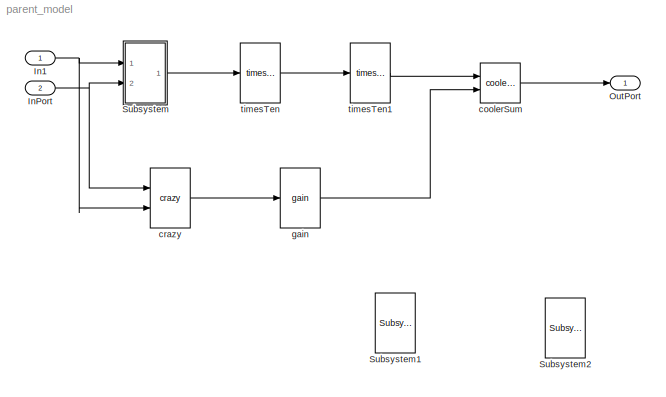
MODEL parent_model
KIND model
BLOCK [Inport] In1
  IconDisplay = Port number
  SID = 2
BLOCK [Inport] InPort
  CopyFcn = if exist('tl_reset_reviewflag') == 2, tl_reset_reviewflag(gcbh); end
  DeleteFcn = if exist('delete_tlblock','file')==2,delete_tlblock(gcbh);end
  IconDisplay = Port number
  NameChangeFcn = if exist('rename_tlblock','file')==2,rename_tlblock(gcbh);end
  OpenFcn = if exist('tl_open_blockdlg','file')==2,tl_open_blockdlg(gcbh);else,open_system(gcbh,'parameter');end
  Port = 2
  SID = 26
BLOCK [Outport] OutPort
  CopyFcn = if exist('tl_reset_reviewflag') == 2, tl_reset_reviewflag(gcbh); end
  DeleteFcn = if exist('delete_tlblock','file')==2,delete_tlblock(gcbh);end
  IconDisplay = Port number
  NameChangeFcn = if exist('rename_tlblock','file')==2,rename_tlblock(gcbh);end
  OpenFcn = if exist('tl_open_blockdlg','file')==2,tl_open_blockdlg(gcbh);else,open_system(gcbh,'parameter');end
  SID = 28
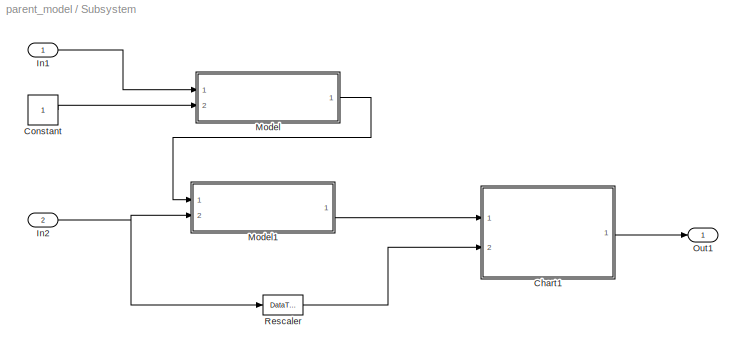
BLOCK [SubSystem] Subsystem
  Ports = [2, 1]
  RequestExecContextInheritance = off
  SID = 9
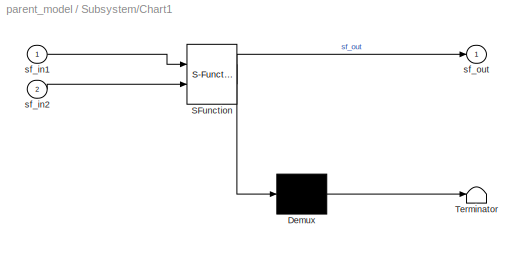
BLOCK [SubSystem] Subsystem/Chart1
  ErrorFcn = Stateflow.Translate.translate
  PermitHierarchicalResolution = ExplicitOnly
  Ports = [2, 1]
  RequestExecContextInheritance = off
  SFBlockType = Chart
  SID = 20
  TreatAsAtomicUnit = on
BLOCK [Demux] Subsystem/Chart1/ Demux 
  Outputs = 1
  Ports = [1, 1]
  SID = 20::69
BLOCK [S-Function] Subsystem/Chart1/ SFunction 
  EnableBusSupport = off
  FunctionName = sf_sfun
  PortCounts = [2 2]
  Ports = [2, 2]
  SID = 20::68
  Tag = Stateflow S-Function parent_model 1
BLOCK [Terminator] Subsystem/Chart1/ Terminator 
  SID = 20::70
BLOCK [Inport] Subsystem/Chart1/sf_in1
  IconDisplay = Port number
  SID = 20::65
BLOCK [Inport] Subsystem/Chart1/sf_in2
  IconDisplay = Port number
  Port = 2
  SID = 20::66
BLOCK [Outport] Subsystem/Chart1/sf_out
  IconDisplay = Port number
  SID = 20::67
BLOCK [Constant] Subsystem/Constant
  SID = 16
BLOCK [Inport] Subsystem/In1
  IconDisplay = Port number
  SID = 10
BLOCK [Inport] Subsystem/In2
  IconDisplay = Port number
  Port = 2
  SID = 18
BLOCK [ModelReference] Subsystem/Model
  CopyOfModelName = child_model.slx
  DefaultDataLogging = on
  ModelNameDialog = child_model.slx
  ModelReferenceVersion = 1.2
  Ports = [2, 1]
  SID = 15
BLOCK [ModelReference] Subsystem/Model1
  CopyOfModelName = child_model2.slx
  DefaultDataLogging = on
  ModelNameDialog = child_model2.slx
  ModelReferenceVersion = 1.8
  Ports = [2, 1]
  SID = 17
BLOCK [Outport] Subsystem/Out1
  IconDisplay = Port number
  SID = 11
BLOCK [DataTypeConversion] Subsystem/Rescaler
  DeleteFcn = if exist('delete_tlblock','file')==2,delete_tlblock(gcbh);end
  NameChangeFcn = if exist('rename_tlblock','file')==2,rename_tlblock(gcbh);end
  OpenFcn = if exist('tl_open_blockdlg','file')==2,tl_open_blockdlg(gcbh);else,open_system(gcbh,'parameter');end
  RndMeth = Floor
  SID = 21
  SaturateOnIntegerOverflow = off
BLOCK [Reference] Subsystem1  REF=sub_library/Subsystem
  Ports = [2, 2]
  SID = 31
  SourceBlock = sub_library/Subsystem
  SourceType = SubSystem
BLOCK [Reference] Subsystem2  REF=sub_library/Subsystem
  Ports = [2, 2]
  SID = 32
  SourceBlock = sub_library/Subsystem
  SourceType = SubSystem
BLOCK [Reference] coolerSum  REF=test_library/coolerSum  (lib defined in slx_4c4a53204023)
  Ports = [2, 1]
  SID = 29
  SourceBlock = test_library/coolerSum
  SourceType = TL_Sum
  data = {'date',735866.66384885414}
BLOCK [Reference] crazy  REF=test_library/crazy  (lib defined in slx_4c4a53204023)
  Ports = [2, 1]
  SID = 24
  SourceBlock = test_library/crazy
  SourceType = SubSystem
BLOCK [Reference] gain  REF=test_library/crazy/gain  (lib defined in slx_4c4a53204023)
  Ports = [1, 1]
  SID = 25
  SourceBlock = test_library/crazy/gain
  SourceType = SubSystem
BLOCK [Reference] timesTen  REF=test_library/timesTen  (lib defined in slx_4c4a53204023)
  Ports = [1, 1]
  SID = 22
  SourceBlock = test_library/timesTen
  SourceType = SubSystem
BLOCK [Reference] timesTen1  REF=test_library/timesTen  (lib defined in slx_4c4a53204023)
  Ports = [1, 1]
  SID = 23
  SourceBlock = test_library/timesTen
  SourceType = SubSystem
NET In1:1 -> Subsystem:1, crazy:2
NET InPort:1 -> Subsystem:2, crazy:1
LINE Subsystem/Chart1/ Demux :1 -> Subsystem/Chart1/ Terminator :1
LINE Subsystem/Chart1/ SFunction :1 -> Subsystem/Chart1/ Demux :1
LINE Subsystem/Chart1/ SFunction :2 -> Subsystem/Chart1/sf_out:1
LINE Subsystem/Chart1/sf_in1:1 -> Subsystem/Chart1/ SFunction :1
LINE Subsystem/Chart1/sf_in2:1 -> Subsystem/Chart1/ SFunction :2
LINE Subsystem/Chart1:1 -> Subsystem/Out1:1
LINE Subsystem/Constant:1 -> Subsystem/Model:2
LINE Subsystem/In1:1 -> Subsystem/Model:1
NET Subsystem/In2:1 -> Subsystem/Model1:2, Subsystem/Rescaler:1
LINE Subsystem/Model1:1 -> Subsystem/Chart1:1
LINE Subsystem/Model:1 -> Subsystem/Model1:1
LINE Subsystem/Rescaler:1 -> Subsystem/Chart1:2
LINE Subsystem:1 -> timesTen:1
LINE coolerSum:1 -> OutPort:1
LINE crazy:1 -> gain:1
LINE gain:1 -> coolerSum:2
LINE timesTen1:1 -> coolerSum:1
LINE timesTen:1 -> timesTen1:1
note: NET lines group one-source signal fan-out (src -> all destinations, sorted); 1:1 wires keep LINE
CHART Subsystem/Chart1 states=1 transitions=0
  STATE_LABEL 'entry: \\nsf_out = 10'
